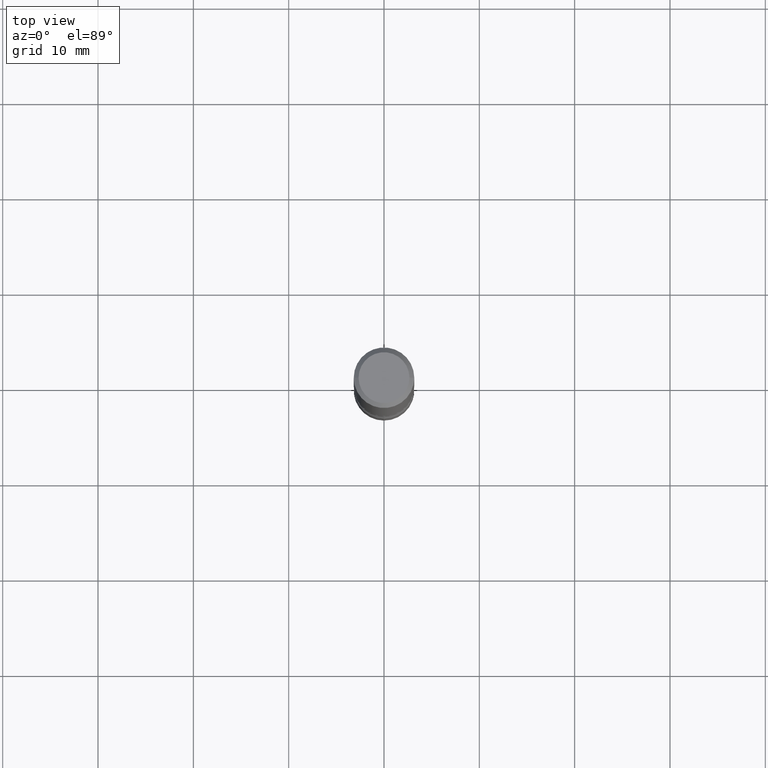
[diagram: clean part render]
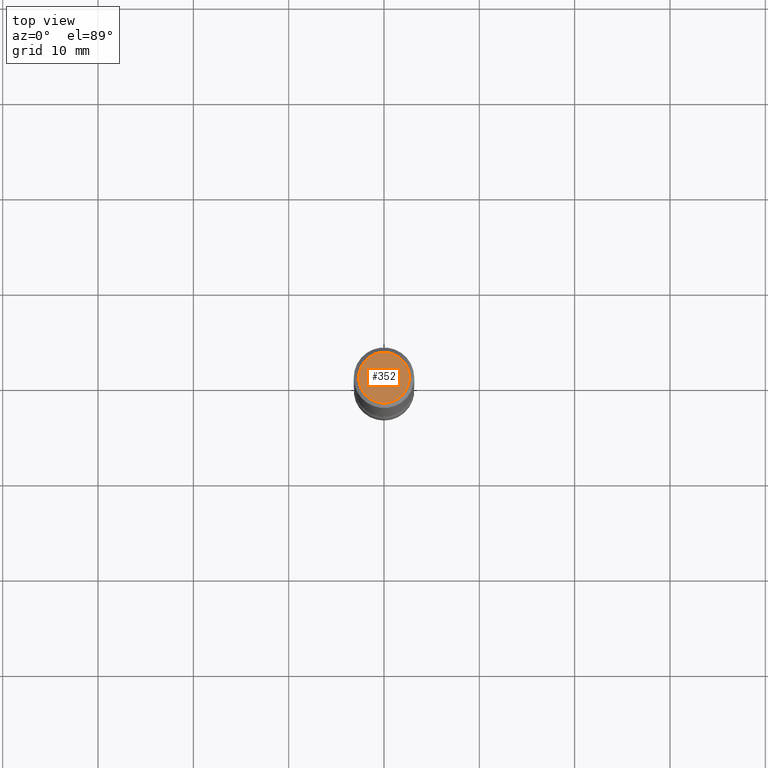
[diagram: same view with one face highlighted and labeled with its STEP entity id]
A machine part, top view. The second image highlights one B-rep face of the part: STEP entity #352.
In plain terms, the highlighted planar face has unit normal (0, -0, -1).
Its self-contained STEP definition (entity closure, byte-faithful):
#27 = AXIS2_PLACEMENT_3D ( 'NONE', #207, #469, #170 ) ;
#36 = VERTEX_POINT ( 'NONE', #402 ) ;
#39 = EDGE_CURVE ( 'NONE', #474, #36, #356, .T. ) ;
#72 = PLANE ( 'NONE',  #216 ) ;
#139 = CIRCLE ( 'NONE', #374, 0.1049999999999997741 ) ;
#146 = CARTESIAN_POINT ( 'NONE',  ( 0.000000000000000000, 0.000000000000000000, 0.000000000000000000 ) ) ;
#170 = DIRECTION ( 'NONE',  ( 1.000000000000000000, -6.982962677686265922E-15, 4.876176775795935232E-29 ) ) ;
#189 = ORIENTED_EDGE ( 'NONE', *, *, #39, .T. ) ;
#205 = ORIENTED_EDGE ( 'NONE', *, *, #428, .T. ) ;
#207 = CARTESIAN_POINT ( 'NONE',  ( 0.000000000000000000, 0.000000000000000000, 0.000000000000000000 ) ) ;
#216 = AXIS2_PLACEMENT_3D ( 'NONE', #234, #384, #266 ) ;
#231 = DIRECTION ( 'NONE',  ( 1.000000000000000000, -6.982962677686265922E-15, 4.876176775795935232E-29 ) ) ;
#234 = CARTESIAN_POINT ( 'NONE',  ( 7.332110811570563480E-16, 0.1049999999999997741, -3.666055405785295052E-16 ) ) ;
#266 = DIRECTION ( 'NONE',  ( -1.000000000000000000, 6.982962677686265922E-15, -4.876176775795935793E-29 ) ) ;
#268 = DIRECTION ( 'NONE',  ( -2.445468806185136597E-29, 3.491481338843145583E-15, 1.000000000000000000 ) ) ;
#341 = EDGE_LOOP ( 'NONE', ( #189, #205 ) ) ;
#352 = ADVANCED_FACE ( 'NONE', ( #378 ), #72, .F. ) ;
#356 = CIRCLE ( 'NONE', #27, 0.1049999999999997741 ) ;
#374 = AXIS2_PLACEMENT_3D ( 'NONE', #146, #268, #231 ) ;
#378 = FACE_OUTER_BOUND ( 'NONE', #341, .T. ) ;
#384 = DIRECTION ( 'NONE',  ( 2.438088387897960049E-29, -3.491481338843145188E-15, -1.000000000000000000 ) ) ;
#402 = CARTESIAN_POINT ( 'NONE',  ( 0.1049999999999997741, -8.238720831321559881E-16, 5.444276250344138855E-30 ) ) ;
#403 = CARTESIAN_POINT ( 'NONE',  ( -0.1049999999999997741, 7.681258945454875041E-16, -5.249639473182155366E-30 ) ) ;
#428 = EDGE_CURVE ( 'NONE', #36, #474, #139, .T. ) ;
#469 = DIRECTION ( 'NONE',  ( -2.445468806185136597E-29, 3.491481338843145583E-15, 1.000000000000000000 ) ) ;
#474 = VERTEX_POINT ( 'NONE', #403 ) ;